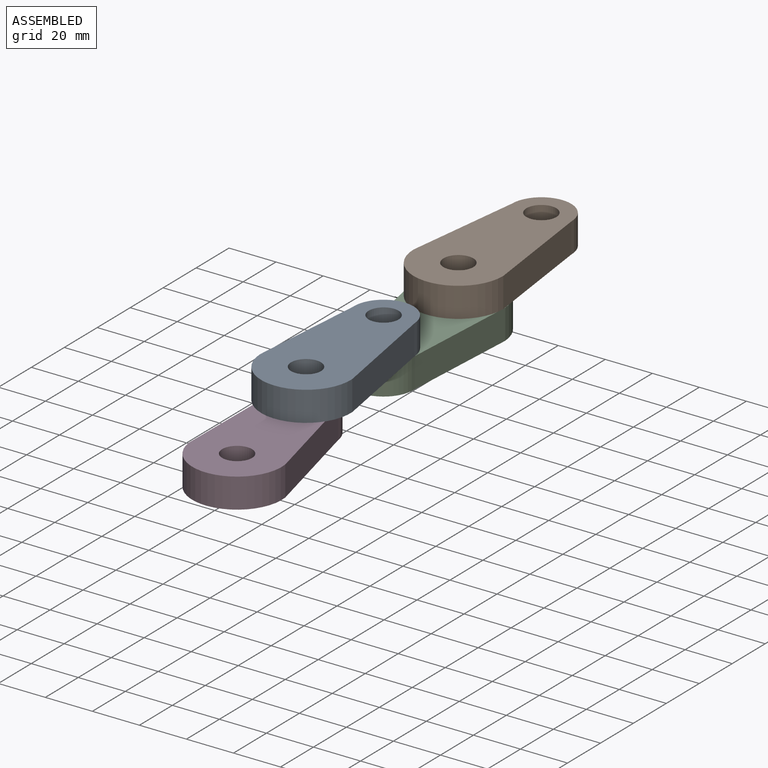
[diagram: assembled view]
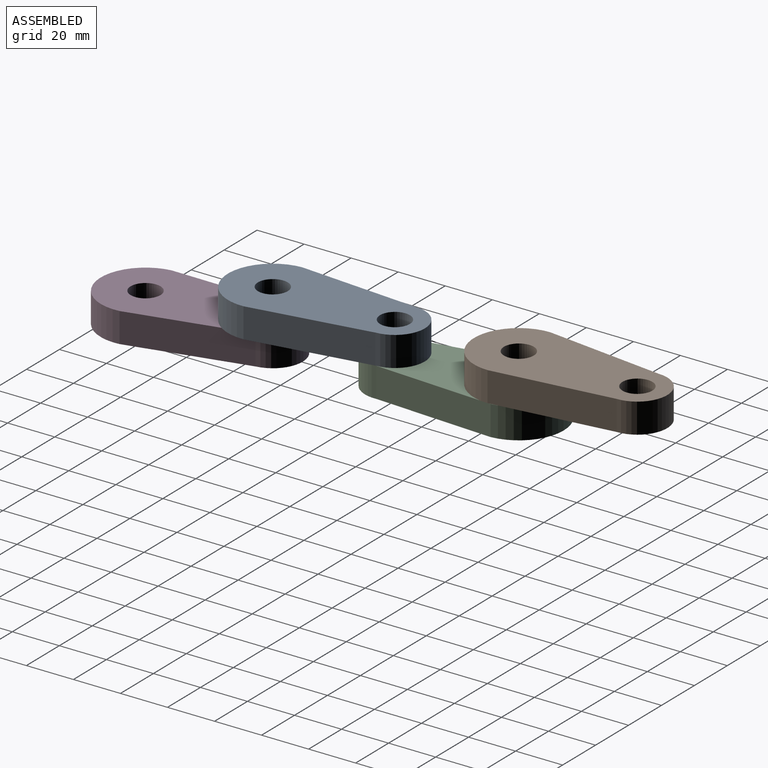
[diagram: assembled view, second angle]
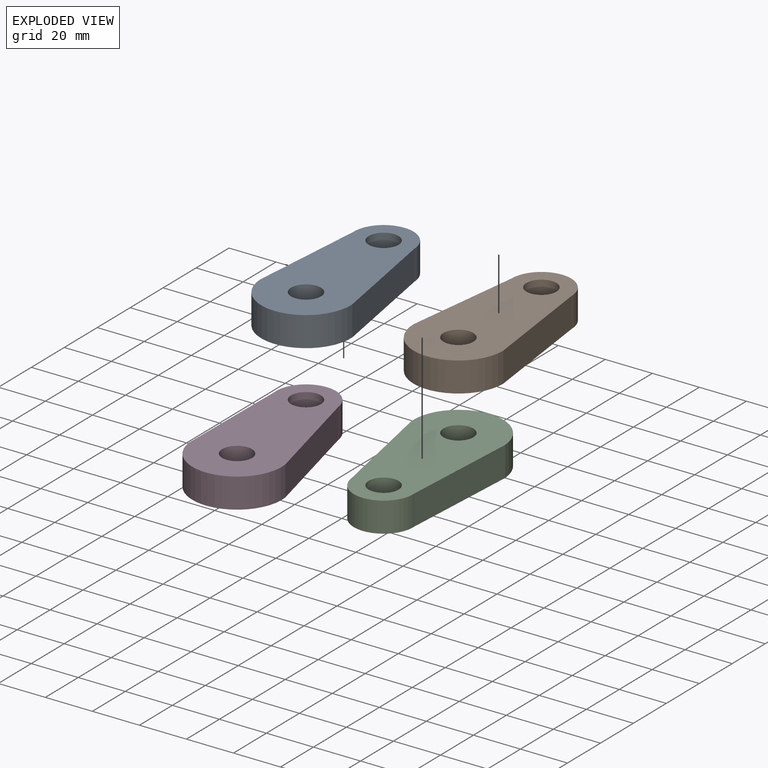
[diagram: exploded view]
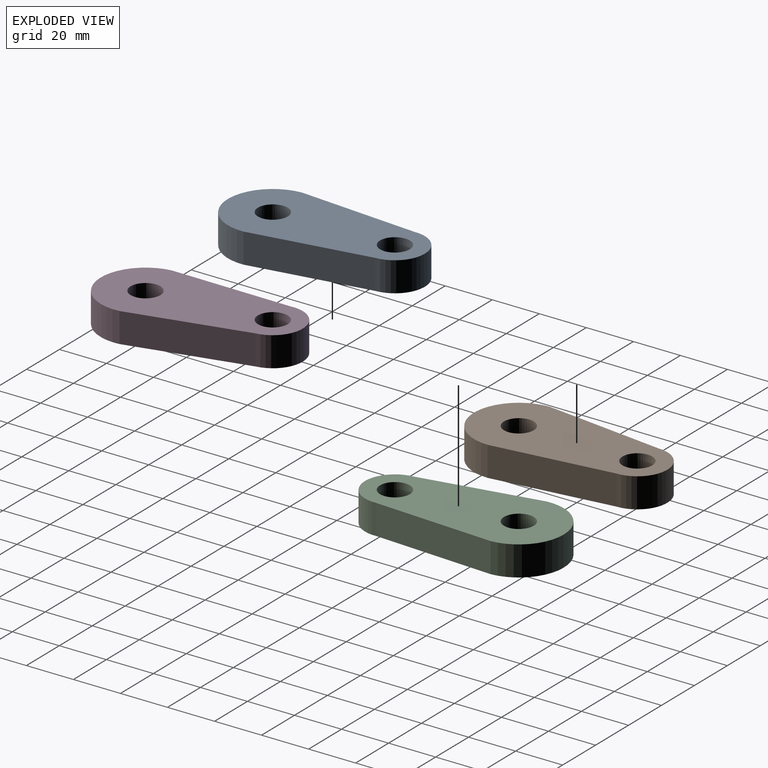
[diagram: exploded view, second angle]
ASSEMBLY  parts=4 mates=3
PART A: 8 faces, bbox 38.1x82.2x12.7 mm
  f0: plane 50.4x12.7mm, normal (-0.99,-0.12,0), area 645.2mm2, adj f1,f4,f5,f6
  f1: cylinder r=12.7mm len=25.4mm, axis (0,0,-1), area 506.7mm2, adj f0,f2,f4,f5
  f2: plane 50.4x12.7mm, normal (0.99,-0.12,0), area 645.2mm2, adj f1,f4,f5,f6
  f3: cylinder r=6.35mm len=12.7mm, axis (0,0,-1), area 506.7mm2, adj f4,f5
  f4: plane 82.15x38.1mm, normal (0,0,1), area 2170.3mm2, adj f0,f1,f2,f3,f6,f7
  f5: plane 82.15x38.1mm, normal (0,0,-1), area 2170.3mm2, adj f0,f1,f2,f3,f6,f7
  f6: cylinder r=19.05mm len=38.1mm, axis (0,0,-1), area 760.1mm2, adj f0,f2,f4,f5
  f7: cylinder r=6.35mm len=12.7mm, axis (0,0,-1), area 506.7mm2, adj f4,f5
PART B: same geometry as A
PART C: same geometry as A
PART D: same geometry as A
PLACE A rot(axis=(0,0,-1),177.4deg) t=(36.32,-17.88,-2.9)mm
PLACE B rot(axis=(0,0,1),180deg) t=(32.9,82.81,-2.9)mm fixed
PLACE C rot(axis=(0,0,1),3.9deg) t=(36.32,-17.88,-15.6)mm
PLACE D rot(axis=(0,0,-1),173.4deg) t=(38.58,-68.23,-15.6)mm
MATE revolute B.f6 <-> C.f6  axis (0,0,-1) through (32.9,32.41,-2.9)mm
MATE revolute D.f3 <-> A.f6  axis (0,0,1) through (38.58,-68.23,-2.9)mm
MATE revolute A.f3 <-> C.f3  axis (0,0,-1) through (36.32,-17.88,-2.9)mm
